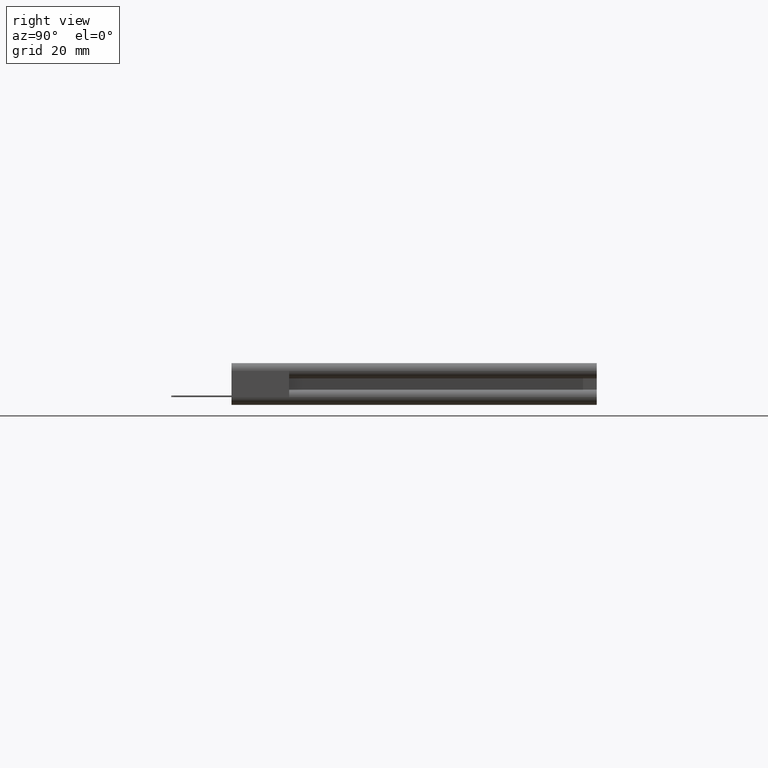
[diagram: clean part render]
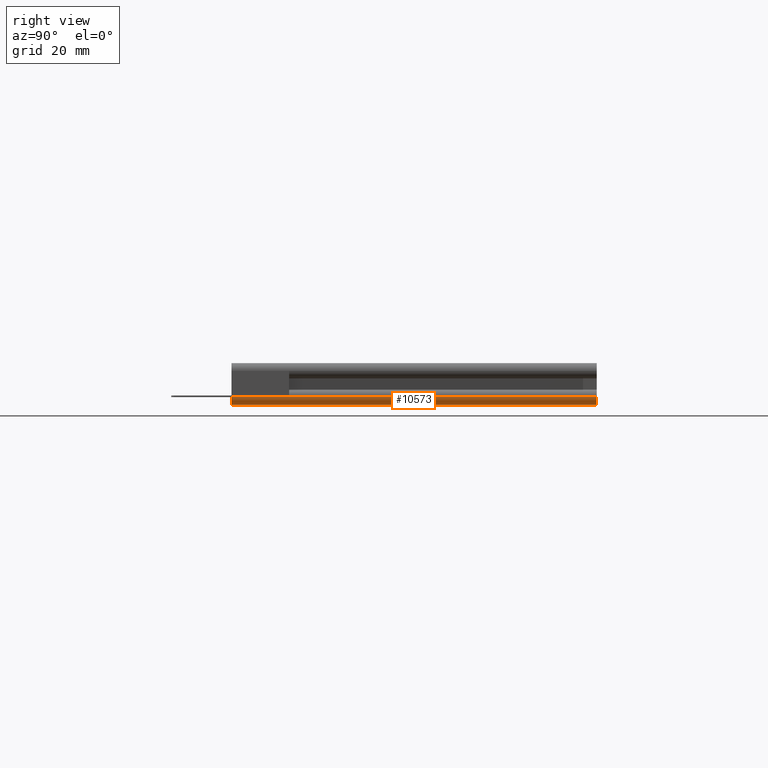
[diagram: same view with one face highlighted and labeled with its STEP entity id]
A machine part, right view. The second image highlights one B-rep face of the part: STEP entity #10573.
In plain terms, the highlighted cylindrical surface (edge-blend (fillet) strip) has radius 1.6256 mm, axis along (0, 1, 0).
Its self-contained STEP definition (entity closure, byte-faithful):
#480 = DIRECTION ( 'NONE',  ( -0.0000000000000000000, 1.000000000000000000, -0.0000000000000000000 ) ) ;
#722 = CARTESIAN_POINT ( 'NONE',  ( 4.811000000000000800, 0.0000000000000000000, -0.1715000000000000100 ) ) ;
#1384 = CARTESIAN_POINT ( 'NONE',  ( 4.875000000000000900, 3.000000000000000400, -0.1075000000000000100 ) ) ;
#1525 = DIRECTION ( 'NONE',  ( -0.0000000000000000000, -1.000000000000000000, -0.0000000000000000000 ) ) ;
#3227 = VERTEX_POINT ( 'NONE', #8530 ) ;
#4076 = CIRCLE ( 'NONE', #8121, 0.06399999999999998700 ) ;
#4569 = DIRECTION ( 'NONE',  ( -0.0000000000000000000, -1.000000000000000000, -0.0000000000000000000 ) ) ;
#4893 = CIRCLE ( 'NONE', #17632, 0.06400000000000000100 ) ;
#5151 = ORIENTED_EDGE ( 'NONE', *, *, #13582, .F. ) ;
#5540 = VERTEX_POINT ( 'NONE', #15414 ) ;
#6943 = LINE ( 'NONE', #722, #20241 ) ;
#7794 = FACE_OUTER_BOUND ( 'NONE', #12065, .T. ) ;
#8091 = DIRECTION ( 'NONE',  ( 0.0000000000000000000, 1.000000000000000000, 0.0000000000000000000 ) ) ;
#8121 = AXIS2_PLACEMENT_3D ( 'NONE', #11698, #480, #13507 ) ;
#8190 = EDGE_CURVE ( 'NONE', #16541, #11114, #4076, .T. ) ;
#8193 = CARTESIAN_POINT ( 'NONE',  ( 4.811000000000000800, 3.000000000000000400, -0.1715000000000000100 ) ) ;
#8530 = CARTESIAN_POINT ( 'NONE',  ( 4.811000000000000800, 0.0000000000000000000, -0.1715000000000000100 ) ) ;
#9538 = EDGE_CURVE ( 'NONE', #5540, #16541, #17226, .T. ) ;
#10299 = DIRECTION ( 'NONE',  ( 0.0000000000000000000, 1.000000000000000000, 0.0000000000000000000 ) ) ;
#10434 = ORIENTED_EDGE ( 'NONE', *, *, #9538, .F. ) ;
#10573 = ADVANCED_FACE ( 'NONE', ( #7794 ), #21055, .T. ) ;
#11096 = AXIS2_PLACEMENT_3D ( 'NONE', #21066, #10299, #22840 ) ;
#11114 = VERTEX_POINT ( 'NONE', #8193 ) ;
#11675 = ORIENTED_EDGE ( 'NONE', *, *, #13841, .F. ) ;
#11698 = CARTESIAN_POINT ( 'NONE',  ( 4.811000000000000800, 3.000000000000000400, -0.1075000000000000100 ) ) ;
#12065 = EDGE_LOOP ( 'NONE', ( #11675, #5151, #13289, #10434 ) ) ;
#12720 = CARTESIAN_POINT ( 'NONE',  ( 4.811000000000000800, 0.0000000000000000000, -0.1075000000000000100 ) ) ;
#13289 = ORIENTED_EDGE ( 'NONE', *, *, #8190, .F. ) ;
#13507 = DIRECTION ( 'NONE',  ( 0.0000000000000000000, 0.0000000000000000000, -1.000000000000000000 ) ) ;
#13582 = EDGE_CURVE ( 'NONE', #11114, #3227, #6943, .T. ) ;
#13841 = EDGE_CURVE ( 'NONE', #3227, #5540, #4893, .T. ) ;
#14534 = DIRECTION ( 'NONE',  ( 0.0000000000000000000, 0.0000000000000000000, 1.000000000000000000 ) ) ;
#15414 = CARTESIAN_POINT ( 'NONE',  ( 4.875000000000000900, 0.0000000000000000000, -0.1075000000000000100 ) ) ;
#16541 = VERTEX_POINT ( 'NONE', #1384 ) ;
#17223 = CARTESIAN_POINT ( 'NONE',  ( 4.875000000000000900, 0.0000000000000000000, -0.1075000000000000100 ) ) ;
#17226 = LINE ( 'NONE', #17223, #21397 ) ;
#17632 = AXIS2_PLACEMENT_3D ( 'NONE', #12720, #1525, #14534 ) ;
#20241 = VECTOR ( 'NONE', #4569, 39.37007874015748100 ) ;
#21055 = CYLINDRICAL_SURFACE ( 'NONE', #11096, 0.06400000000000000100 ) ;
#21066 = CARTESIAN_POINT ( 'NONE',  ( 4.811000000000000800, 0.0000000000000000000, -0.1075000000000000100 ) ) ;
#21397 = VECTOR ( 'NONE', #8091, 39.37007874015748100 ) ;
#22840 = DIRECTION ( 'NONE',  ( 0.0000000000000000000, 0.0000000000000000000, 1.000000000000000000 ) ) ;